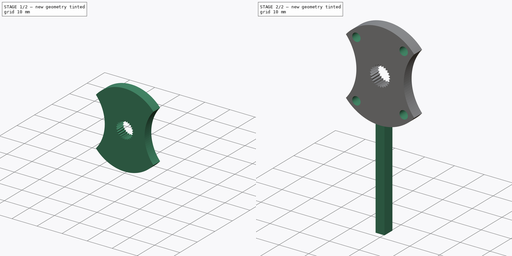
[diagram: build sequence overview — one tinted view per stage of 2, left to right]
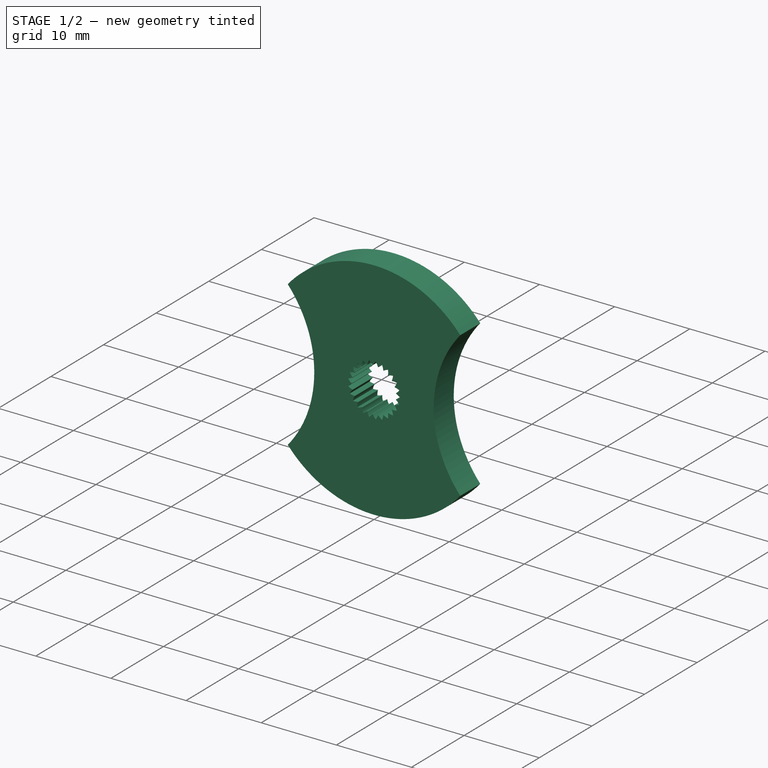
[diagram: stage 1 of 2 — iso view after this stage's code; geometry added in this stage tinted green]
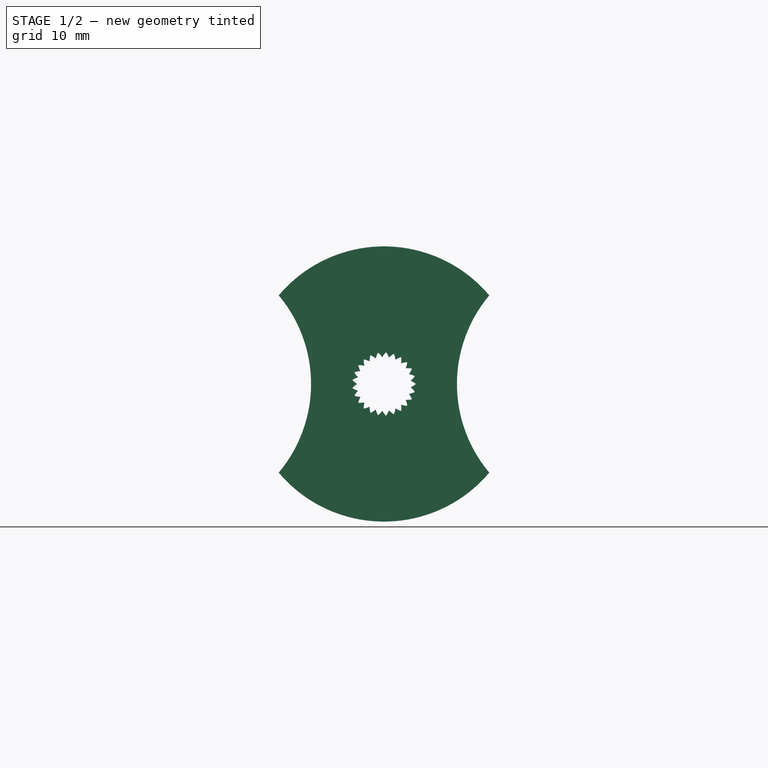
[diagram: stage 1 of 2 — front view after this stage's code; geometry added in this stage tinted green]
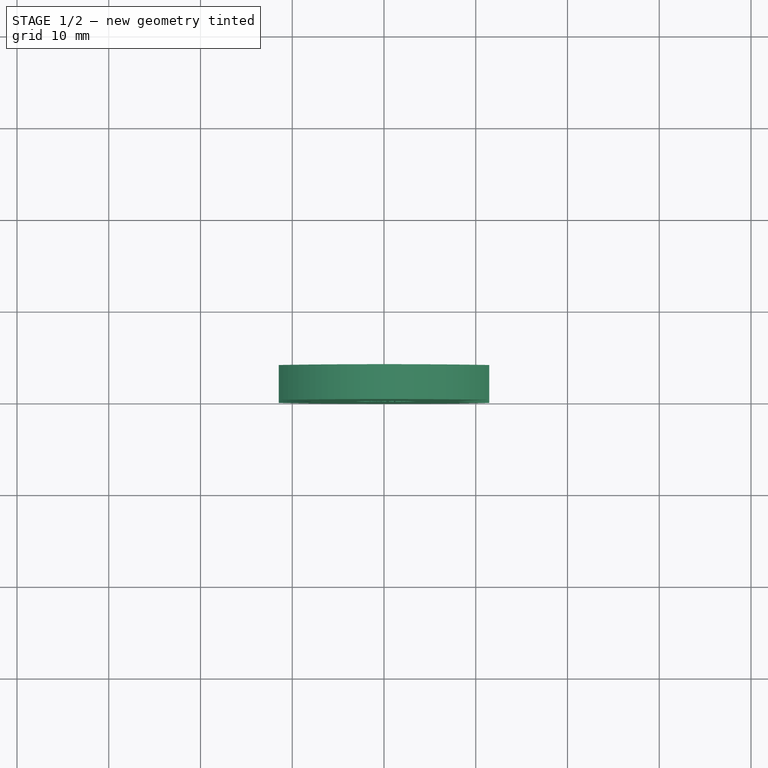
[diagram: stage 1 of 2 — top view after this stage's code; geometry added in this stage tinted green]
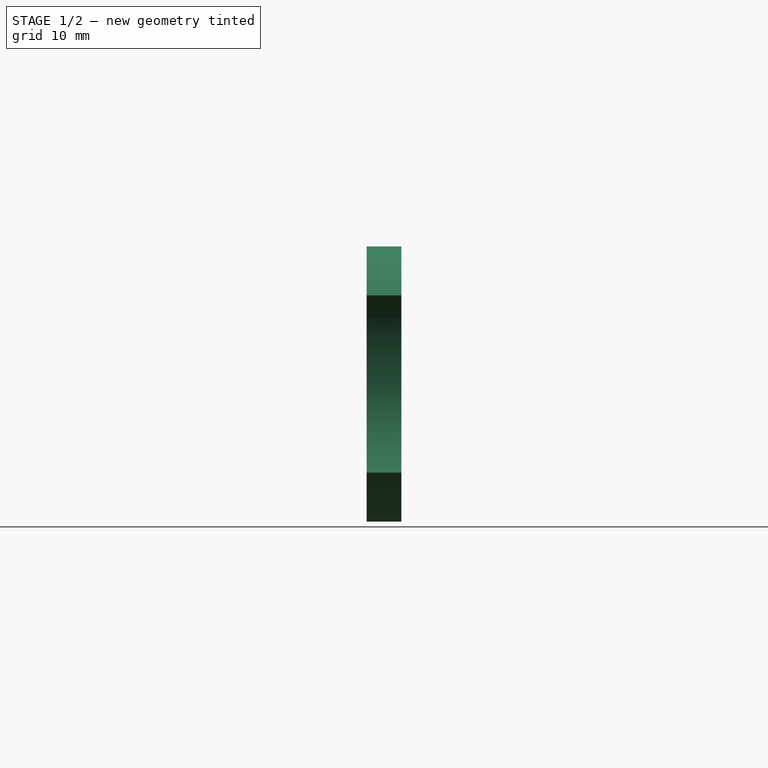
[diagram: stage 1 of 2 — right view after this stage's code; geometry added in this stage tinted green]
FCSTD DOCUMENT  (FreeCAD 0.18R16146 (Git))
Label: LowerAxisTowerPiece
License: All rights reserved
LicenseURL: http://en.wikipedia.org/wiki/All_rights_reserved
objects: Sketcher::SketchObject×3, PartDesign::Pad×2, PartDesign::Pocket×2, Part::Part2DObjectPython×1, PartDesign::Body×1
note: 13 computed .brp shape members not serialized (recipe doc carries the construction recipe); baked Part::Feature solids carry a one-line shape summary decoded from their .brp

FEATURE [Sketcher::SketchObject] CopySketch078
  Placement = pos=(0,0,0) rot=(-1,0,0;1.5708rad)
  sketch-geometry (9):
    g0: ArcOfCircle CenterX=0 CenterY=0 CenterZ=0 NormalX=0 NormalY=0 NormalZ=1 AngleXU=0 Radius=15 StartAngle=0.699755 EndAngle=2.44184
    g1: GeomPoint X=-15 Y=0 Z=0
    g2: GeomPoint X=-7.95 Y=0 Z=0
    g3: LineSegment [constr] StartX=-11.475 StartY=-9.66045 StartZ=0 EndX=-11.475 EndY=9.66045 EndZ=0
    g4: ArcOfCircle CenterX=-22.95 CenterY=-2e-16 CenterZ=0 NormalX=0 NormalY=0 NormalZ=1 AngleXU=0 Radius=15 StartAngle=5.58343 EndAngle=6.98294
    g5: GeomPoint X=7.95 Y=0 Z=0
    g6: LineSegment [constr] StartX=11.475 StartY=9.66045 StartZ=0 EndX=11.475 EndY=-9.66045 EndZ=0
    g7: ArcOfCircle CenterX=22.95 CenterY=1.9e-15 CenterZ=0 NormalX=0 NormalY=0 NormalZ=1 AngleXU=0 Radius=15 StartAngle=2.44184 EndAngle=3.84135
    g8: ArcOfCircle CenterX=0 CenterY=0 CenterZ=0 NormalX=0 NormalY=0 NormalZ=1 AngleXU=0 Radius=15 StartAngle=3.84135 EndAngle=5.58343
  constraints (20):
    c: Coincident(g0,g-1)
    c: Radius(g0) = 15
    c: PointOnObject(g1,g0)
    c: PointOnObject(g1,g-1)
    c: PointOnObject(g2,g-1)
    c: Vertical(g3)
    c: PointOnObject(g4,g0)
    c: PointOnObject(g2,g4)
    c: PointOnObject(g5,g-1)
    c: Vertical(g6)
    c: Coincident(g7,g6)
    c: PointOnObject(g5,g7)
    c: Coincident(g0,g6)
    c: Coincident(g0,g3)
    c: Coincident(g8,g3)
    c: Coincident(g0,g8)
    c: Coincident(g4,g8)
    c: Coincident(g4,g0)
    c: Coincident(g8,g7)
    c: Coincident(g7,g0)
FEATURE [PartDesign::Pad] Pad
  Length = 3.8
  Length2 = 100
  Placement = pos=(0,0,0) rot=(-1,0,0;1.5708rad)
  Profile = -> CopySketch078
  Type = 0
FEATURE [Part::Part2DObjectPython] InvoluteGear002  # Draft 2D object (typed FeaturePython)
  ExternalGear = true
  HighPrecision = true
  MapMode = 5
  Modules = 0.257
  NumberOfTeeth = 25
  Placement = pos=(0,3.8,-8e-16) rot=(-1,0,0;1.5708rad)
  PressureAngle = 36
  Support = -> [Pad]
FEATURE [PartDesign::Pocket] Pocket047
  BaseFeature = -> Pad
  Length = 5
  Length2 = 100
  Placement = pos=(0,0,0) rot=(-1,0,0;1.5708rad)
  Profile = -> InvoluteGear002
  Type = 1
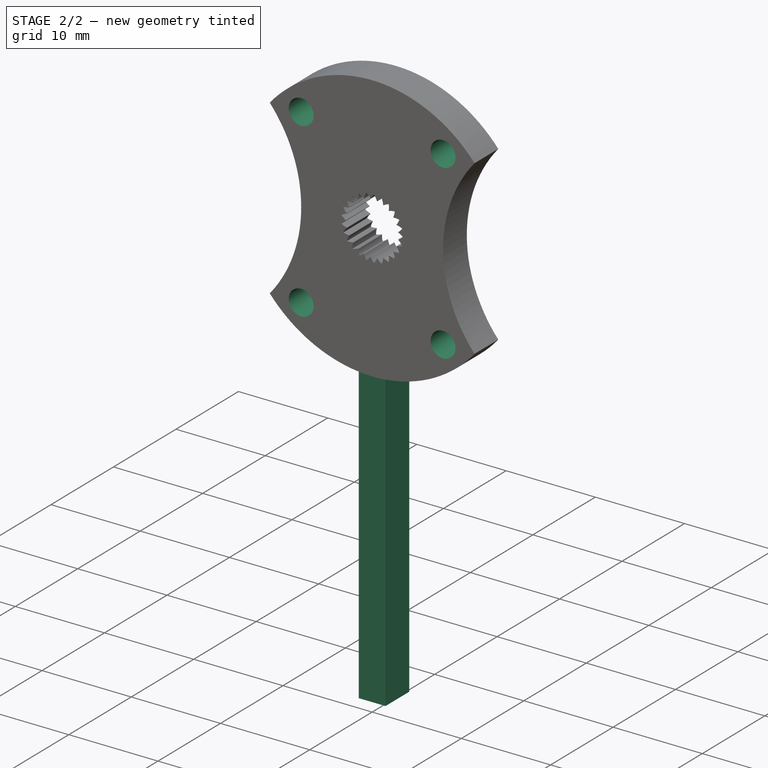
[diagram: stage 2 of 2 — iso view after this stage's code; geometry added in this stage tinted green]
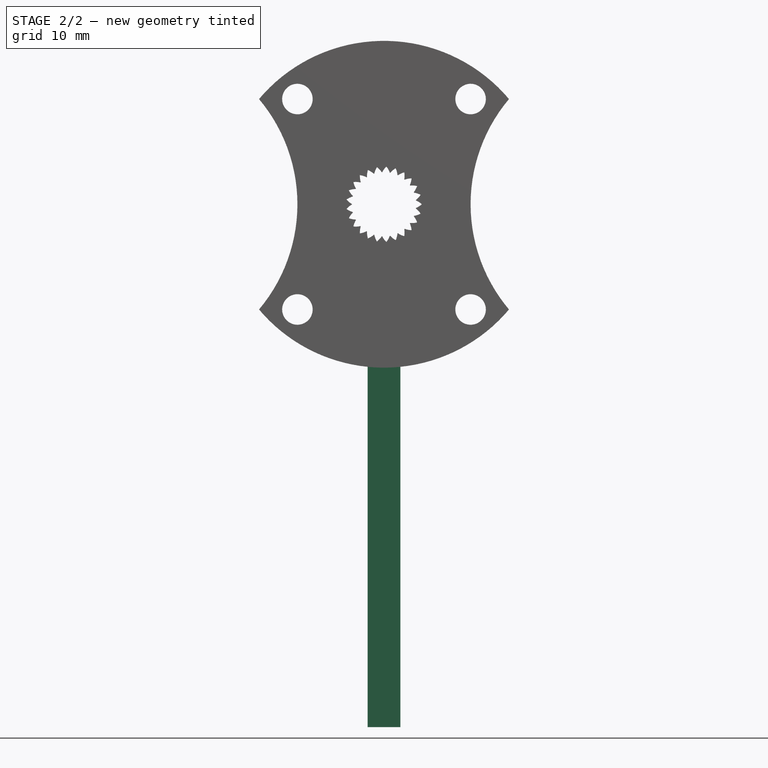
[diagram: stage 2 of 2 — front view after this stage's code; geometry added in this stage tinted green]
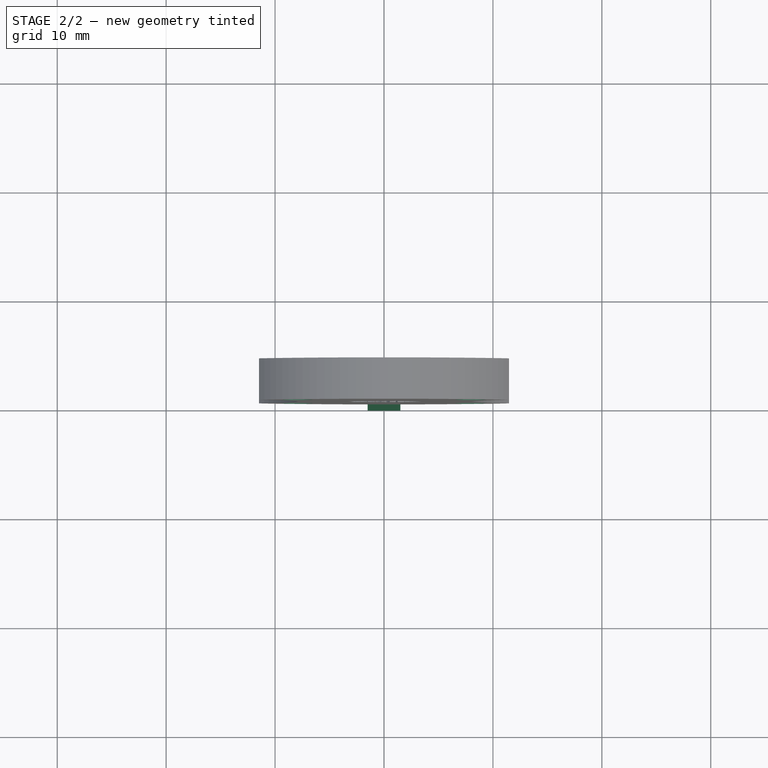
[diagram: stage 2 of 2 — top view after this stage's code; geometry added in this stage tinted green]
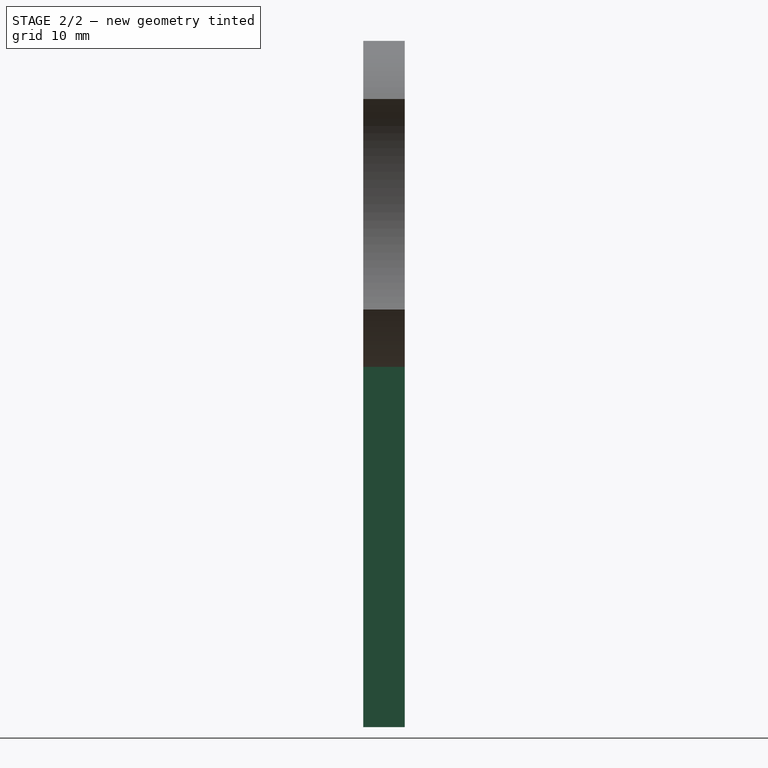
[diagram: stage 2 of 2 — right view after this stage's code; geometry added in this stage tinted green]
FEATURE [Sketcher::SketchObject] Sketch077
  ExternalGeometry = -> [Pocket047]
  MapMode = 5
  Placement = pos=(0,3.8,-8e-16) rot=(-1,0,0;1.5708rad)
  Support = -> [Pocket047]
  sketch-geometry (10):
    g0: LineSegment [constr] StartX=-11.475 StartY=9.66045 StartZ=0 EndX=11.475 EndY=9.66045 EndZ=0
    g1: LineSegment [constr] StartX=-11.475 StartY=-9.66045 StartZ=0 EndX=11.475 EndY=-9.66045 EndZ=0
    g2: LineSegment [constr] StartX=-7.95 StartY=9.66045 StartZ=0 EndX=7.95 EndY=9.66045 EndZ=0
    g3: LineSegment [constr] StartX=7.95 StartY=9.66045 StartZ=0 EndX=7.95 EndY=-9.66045 EndZ=0
    g4: LineSegment [constr] StartX=7.95 StartY=-9.66045 StartZ=0 EndX=-7.95 EndY=-9.66045 EndZ=0
    g5: LineSegment [constr] StartX=-7.95 StartY=-9.66045 StartZ=0 EndX=-7.95 EndY=9.66045 EndZ=0
    g6: Circle CenterX=-7.95 CenterY=9.66045 CenterZ=0 NormalX=0 NormalY=0 NormalZ=1 AngleXU=0 Radius=1.4
    g7: Circle CenterX=7.95 CenterY=9.66045 CenterZ=0 NormalX=0 NormalY=0 NormalZ=1 AngleXU=0 Radius=1.4
    g8: Circle CenterX=-7.95 CenterY=-9.66045 CenterZ=0 NormalX=0 NormalY=0 NormalZ=1 AngleXU=0 Radius=1.4
    g9: Circle CenterX=7.95 CenterY=-9.66045 CenterZ=0 NormalX=0 NormalY=0 NormalZ=1 AngleXU=0 Radius=1.4
  constraints (24):
    c: Coincident(g0,g-3)
    c: Coincident(g0,g-4)
    c: Coincident(g1,g-3)
    c: Coincident(g1,g-4)
    c: Coincident(g2,g3)
    c: Coincident(g3,g4)
    c: Coincident(g4,g5)
    c: Coincident(g5,g2)
    c: Horizontal(g2)
    c: Horizontal(g4)
    c: Vertical(g3)
    c: Vertical(g5)
    c: PointOnObject(g2,g0)
    c: PointOnObject(g3,g1)
    c: Tangent(g3,g-4)
    c: Tangent(g5,g-3)
    c: Coincident(g6,g2)
    c: Coincident(g7,g2)
    c: Coincident(g8,g4)
    c: Coincident(g9,g3)
    c: Radius(g8) = 1.4
    c: Radius(g9) = 1.4
    c: Radius(g6) = 1.4
    c: Radius(g7) = 1.4
FEATURE [PartDesign::Pocket] Pocket049
  BaseFeature = -> Pocket047
  Length = 5
  Length2 = 100
  Placement = pos=(0,0,0) rot=(-1,0,0;1.5708rad)
  Profile = -> Sketch077
  Type = 1
FEATURE [Sketcher::SketchObject] Sketch078
  ExternalGeometry = -> [Pocket049]
  MapMode = 5
  Placement = pos=(0,3.8,-8e-16) rot=(-1,0,0;1.5708rad)
  Support = -> [Pocket049]
  sketch-geometry (6):
    g0: LineSegment StartX=-1.5 StartY=48 StartZ=0 EndX=1.5 EndY=48 EndZ=0
    g1: LineSegment StartX=1.5 StartY=48 StartZ=0 EndX=1.5 EndY=14 EndZ=0
    g2: LineSegment StartX=1.5 StartY=14 StartZ=0 EndX=-1.5 EndY=14 EndZ=0
    g3: LineSegment StartX=-1.5 StartY=14 StartZ=0 EndX=-1.5 EndY=48 EndZ=0
    g4: GeomPoint X=0 Y=14 Z=0
    g5: GeomPoint X=0 Y=15 Z=0
  constraints (16):
    c: Coincident(g0,g1)
    c: Coincident(g1,g2)
    c: Coincident(g2,g3)
    c: Coincident(g3,g0)
    c: Horizontal(g0)
    c: Horizontal(g2)
    c: Vertical(g1)
    c: Vertical(g3)
    c: DistanceX(g0,g0) = 3
    c: PointOnObject(g4,g2)
    c: Distance(g4,g1) = 1.5
    c: PointOnObject(g4,g-2)
    c: DistanceY(g1,g0) = 34
    c: PointOnObject(g5,g-3)
    c: PointOnObject(g5,g-2)
    c: Distance(g4,g5) = 1
FEATURE [PartDesign::Pad] Pad019
  BaseFeature = -> Pocket049
  Length = 3.8
  Length2 = 100
  Placement = pos=(0,0,0) rot=(-1,0,0;1.5708rad)
  Profile = -> Sketch078
  Reversed = true
  Type = 0
FEATURE [PartDesign::Body] Body  label="LowerAxisTowerPiece"
  Group = -> [Pad,InvoluteGear002,Pocket047,Sketch077,Pocket049,Sketch078,Pad019]
  Origin = -> Origin
  Placement = pos=(60,55.5,60) rot=(0,0,1;0rad)
  Tip = -> Pad019
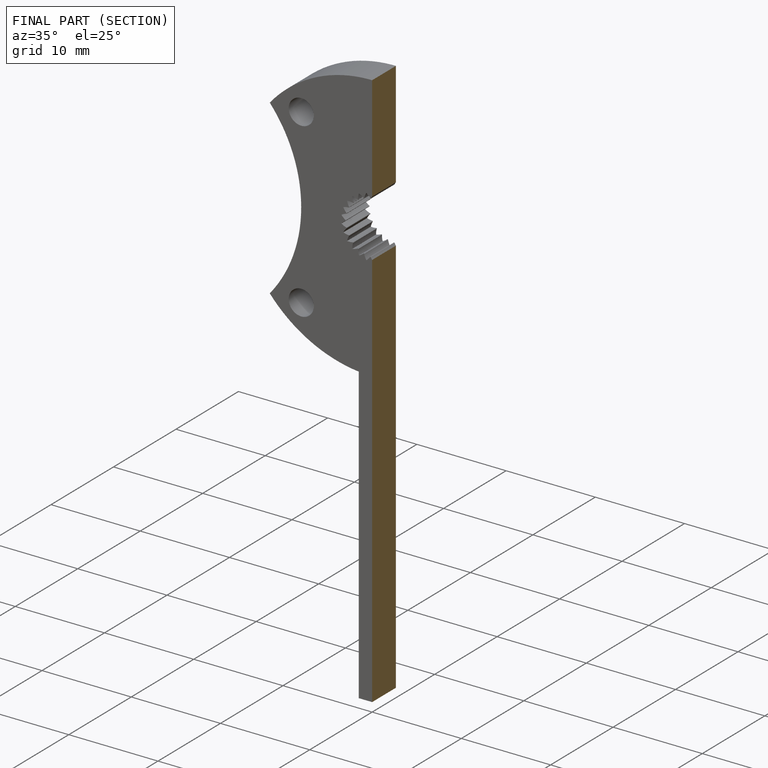
[diagram: finished part — half-section view (interior)]
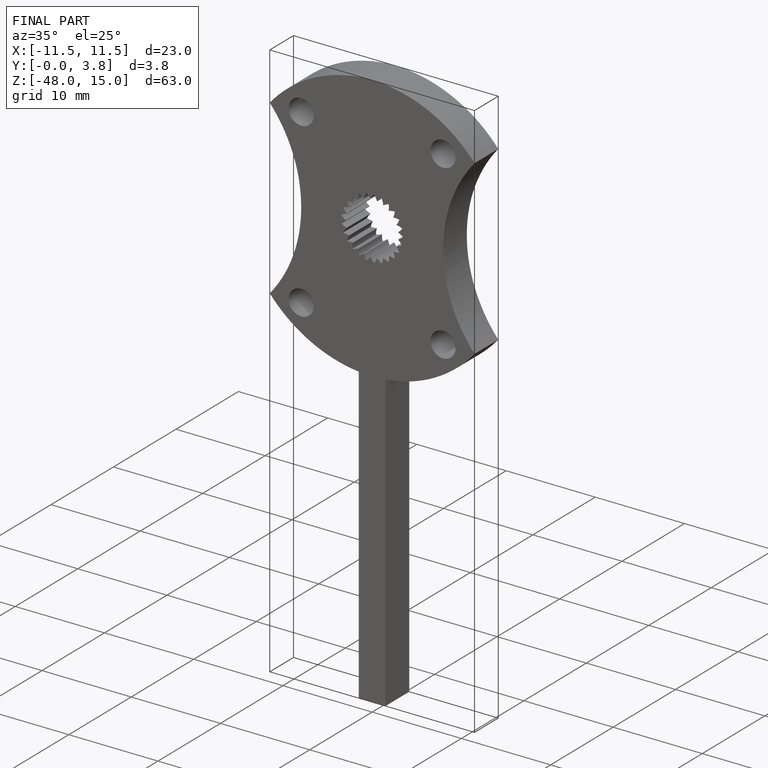
[diagram: finished part — iso view with bounding-box wireframe]
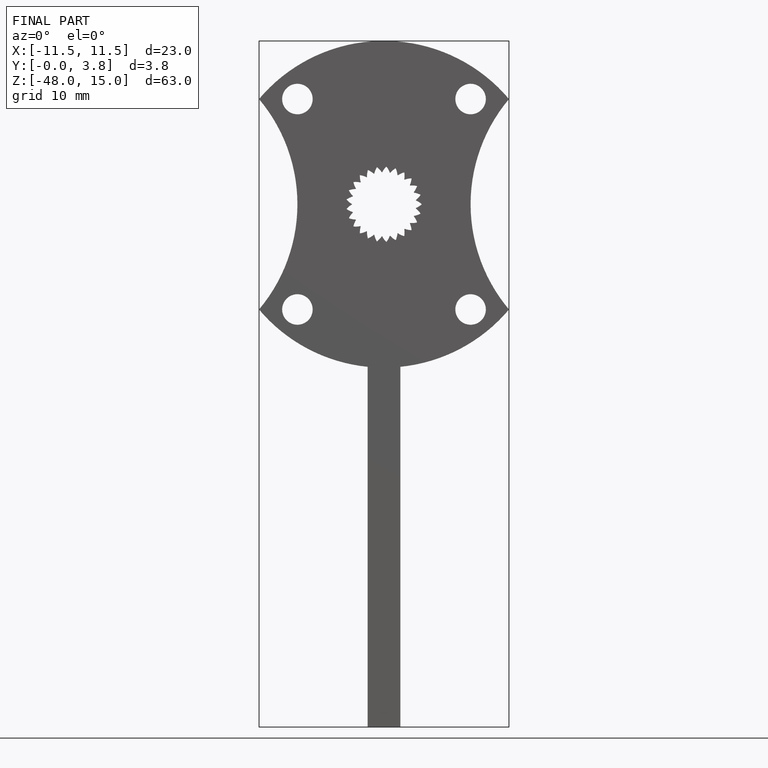
[diagram: finished part — front view with bounding-box wireframe]
